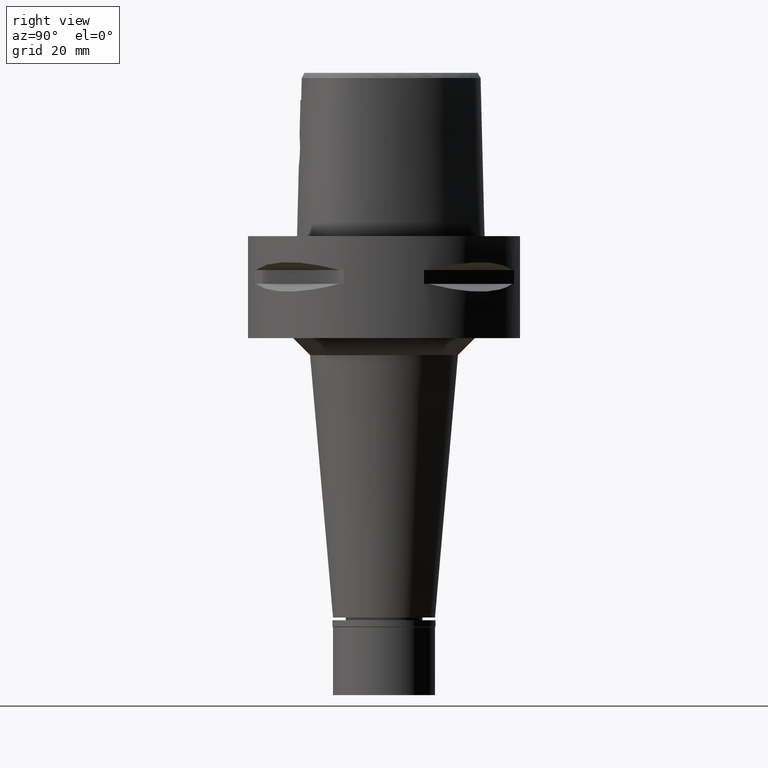
[diagram: clean part render]
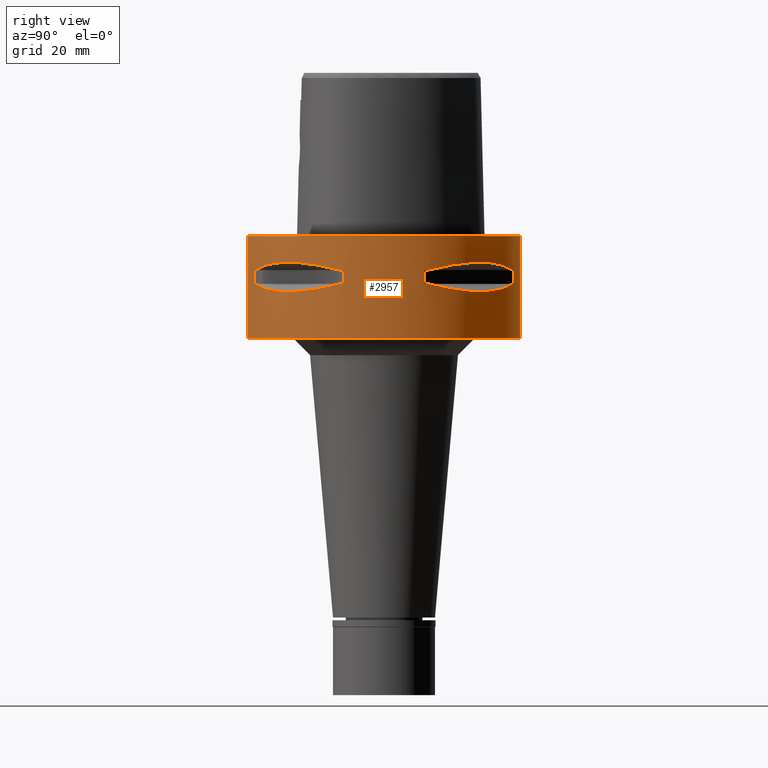
[diagram: same view with one face highlighted and labeled with its STEP entity id]
A machine part, right view. The second image highlights one B-rep face of the part: STEP entity #2957.
In plain terms, the highlighted cylindrical surface (partial cylindrical patch) has radius 40 mm, axis along (0, 0, -1).
Its self-contained STEP definition (entity closure, byte-faithful):
#23 = AXIS2_PLACEMENT_3D ( 'NONE', #3019, #1075, #1899 ) ;
#34 = CIRCLE ( 'NONE', #3195, 40.00000000000000000 ) ;
#51 = VERTEX_POINT ( 'NONE', #1360 ) ;
#60 = CARTESIAN_POINT ( 'NONE',  ( 11.76033600280999991, -38.23211342708000160, -9.950000000000001066 ) ) ;
#74 = VERTEX_POINT ( 'NONE', #4782 ) ;
#77 = CARTESIAN_POINT ( 'NONE',  ( 11.76033600280999991, 38.23211342708000160, -9.950000000000001066 ) ) ;
#80 = CARTESIAN_POINT ( 'NONE',  ( 30.77249687753092289, -25.62819065487347814, -16.26160051742767365 ) ) ;
#159 = DIRECTION ( 'NONE',  ( 0.0000000000000000000, 0.0000000000000000000, -1.000000000000000000 ) ) ;
#203 = DIRECTION ( 'NONE',  ( 0.0000000000000000000, 0.0000000000000000000, 1.000000000000000000 ) ) ;
#220 = CARTESIAN_POINT ( 'NONE',  ( 33.72697758561029246, -21.50560509406250276, -15.78472370821739901 ) ) ;
#240 = CARTESIAN_POINT ( 'NONE',  ( 33.76566745675005166, 21.44484052678287256, -15.77571175125579828 ) ) ;
#257 = CARTESIAN_POINT ( 'NONE',  ( 23.88364259926272481, 32.22570670466008380, -7.859869859733159991 ) ) ;
#289 = CARTESIAN_POINT ( 'NONE',  ( 26.20795918968520866, 30.36058330523860960, -7.669863843575448925 ) ) ;
#297 = CARTESIAN_POINT ( 'NONE',  ( 37.74622163926999718, 13.23717311056000057, -9.950000000002001244 ) ) ;
#333 = DIRECTION ( 'NONE',  ( 0.9558028356769561196, 0.2940084000702865574, 0.0000000000000000000 ) ) ;
#351 = ORIENTED_EDGE ( 'NONE', *, *, #1132, .F. ) ;
#383 = CARTESIAN_POINT ( 'NONE',  ( 20.91613153241887701, -34.09685321779939926, -15.69507322892818557 ) ) ;
#403 = CARTESIAN_POINT ( 'NONE',  ( 21.20128033779640830, -33.91944728533381692, -15.73905907260415837 ) ) ;
#420 = CARTESIAN_POINT ( 'NONE',  ( 13.23717311056000057, 37.74622163926999718, -14.05000000000000071 ) ) ;
#427 = DIRECTION ( 'NONE',  ( 0.0000000000000000000, 0.0000000000000000000, -1.000000000000000000 ) ) ;
#451 = VECTOR ( 'NONE', #713, 1000.000000000000000 ) ;
#475 = CARTESIAN_POINT ( 'NONE',  ( 33.03835700909839090, -22.55421454657001235, -15.93168855142863904 ) ) ;
#501 = CARTESIAN_POINT ( 'NONE',  ( 0.0000000000000000000, 1.303207891312999846E-14, 0.0000000000000000000 ) ) ;
#503 = DIRECTION ( 'NONE',  ( 0.2940084000702865574, -0.9558028356769561196, 0.0000000000000000000 ) ) ;
#514 = CIRCLE ( 'NONE', #4419, 39.99999999999999289 ) ;
#528 = CARTESIAN_POINT ( 'NONE',  ( 0.0000000000000000000, 1.303207891312999846E-14, -9.950000000000001066 ) ) ;
#545 = CARTESIAN_POINT ( 'NONE',  ( 0.0000000000000000000, -40.00000000000000000, 0.0000000000000000000 ) ) ;
#561 = DIRECTION ( 'NONE',  ( 0.0000000000000000000, 0.0000000000000000000, 1.000000000000000000 ) ) ;
#565 = VERTEX_POINT ( 'NONE', #4222 ) ;
#583 = CIRCLE ( 'NONE', #4665, 39.99999999999999289 ) ;
#586 = EDGE_CURVE ( 'NONE', #2168, #4932, #583, .T. ) ;
#588 = ORIENTED_EDGE ( 'NONE', *, *, #3388, .T. ) ;
#608 = DIRECTION ( 'NONE',  ( 0.9436555409818374596, 0.3309293277639132058, 0.0000000000000000000 ) ) ;
#610 = CARTESIAN_POINT ( 'NONE',  ( 11.76033600280999991, 38.23211342708000160, -14.05000000000000071 ) ) ;
#637 = CARTESIAN_POINT ( 'NONE',  ( 33.91944728533341191, 21.20128033779756294, -15.73905907260447101 ) ) ;
#663 = ORIENTED_EDGE ( 'NONE', *, *, #4082, .T. ) ;
#674 = CARTESIAN_POINT ( 'NONE',  ( 35.41596287858687475, 18.83173199168492218, -8.619939612229346793 ) ) ;
#685 = ORIENTED_EDGE ( 'NONE', *, *, #1292, .T. ) ;
#687 = CARTESIAN_POINT ( 'NONE',  ( 23.60097336453497618, 32.30995221951452834, -16.06165603927751917 ) ) ;
#692 = AXIS2_PLACEMENT_3D ( 'NONE', #4394, #4813, #1185 ) ;
#704 = CARTESIAN_POINT ( 'NONE',  ( 0.0000000000000000000, 1.303207891312999846E-14, -14.05000000000000071 ) ) ;
#713 = DIRECTION ( 'NONE',  ( 0.0000000000000000000, 0.0000000000000000000, 1.000000000000000000 ) ) ;
#715 = CARTESIAN_POINT ( 'NONE',  ( 36.35358138589326416, 16.81132763100200123, -14.94059947015123058 ) ) ;
#719 = ORIENTED_EDGE ( 'NONE', *, *, #2723, .T. ) ;
#752 = VERTEX_POINT ( 'NONE', #3722 ) ;
#757 = EDGE_CURVE ( 'NONE', #888, #4245, #974, .T. ) ;
#766 = EDGE_LOOP ( 'NONE', ( #3926, #2994, #719, #2580 ) ) ;
#807 = CARTESIAN_POINT ( 'NONE',  ( 37.74622163926999718, 13.23717311056000057, -14.05000000000000071 ) ) ;
#817 = CARTESIAN_POINT ( 'NONE',  ( 0.0000000000000000000, 40.00000000000000000, 0.0000000000000000000 ) ) ;
#866 = CARTESIAN_POINT ( 'NONE',  ( 21.46607685731536819, -33.75216276490051825, -15.77886817953059051 ) ) ;
#888 = VERTEX_POINT ( 'NONE', #60 ) ;
#901 = ORIENTED_EDGE ( 'NONE', *, *, #3313, .T. ) ;
#907 = CARTESIAN_POINT ( 'NONE',  ( 26.20795918965211158, -30.36058330527167115, -7.669882118573492669 ) ) ;
#910 = CARTESIAN_POINT ( 'NONE',  ( 0.0000000000000000000, 1.303207891312999846E-14, -9.950000000000001066 ) ) ;
#913 = ORIENTED_EDGE ( 'NONE', *, *, #4505, .F. ) ;
#934 = CARTESIAN_POINT ( 'NONE',  ( 30.36058330527161075, -26.20795918965218618, -7.669863843587146235 ) ) ;
#974 = LINE ( 'NONE', #2919, #1590 ) ;
#986 = CARTESIAN_POINT ( 'NONE',  ( 36.74070924257181758, -16.10442380448733957, -9.189948522868267133 ) ) ;
#993 = B_SPLINE_CURVE_WITH_KNOTS ( 'NONE', 3,
 ( #1470, #2995, #715, #5082, #4642, #1079, #637, #4589, #3386, #240, #2660, #2300, #4241, #2218, #3799, #687, #1823, #3413, #2270, #4998, #3856, #1441, #1875, #3882, #2633, #3464 ),
 .UNSPECIFIED., .F., .F.,
 ( 4, 1, 1, 1, 1, 1, 1, 2, 2, 2, 1, 1, 1, 1, 1, 1, 2, 2, 4 ),
 ( 0.0000000000000000000, 0.1249999999999938660, 0.1874999999999906741, 0.2187499999999889255, 0.2343749999999879541, 0.2421874999999872879, 0.2460937499999869549, 0.2480468749999869271, 0.2499999999999869271, 0.4999999999999968914, 0.6250000000000018874, 0.6875000000000044409, 0.7187500000000057732, 0.7343750000000064393, 0.7421875000000067724, 0.7460937500000065503, 0.7480468750000062172, 0.7500000000000058842, 1.000000000000000000 ),
 .UNSPECIFIED. ) ;
#1041 = EDGE_CURVE ( 'NONE', #4839, #74, #2423, .T. ) ;
#1075 = DIRECTION ( 'NONE',  ( 0.0000000000000000000, 0.0000000000000000000, 1.000000000000000000 ) ) ;
#1079 = CARTESIAN_POINT ( 'NONE',  ( 34.09685321779860345, 20.91613153242115075, -15.69507322892878953 ) ) ;
#1095 = CARTESIAN_POINT ( 'NONE',  ( 0.0000000000000000000, 1.303207891312999846E-14, -14.05000000000000071 ) ) ;
#1118 = CIRCLE ( 'NONE', #3681, 39.99999999999997868 ) ;
#1129 = B_SPLINE_CURVE_WITH_KNOTS ( 'NONE', 3,
 ( #4206, #2597, #674, #5067, #4986, #289, #257, #4230, #1864, #4283 ),
 .UNSPECIFIED., .F., .F.,
 ( 4, 2, 2, 2, 4 ),
 ( 0.0000000000000000000, 0.2499999999999997780, 0.4999999999999995559, 0.7499999999999997780, 1.000000000000000000 ),
 .UNSPECIFIED. ) ;
#1132 = EDGE_CURVE ( 'NONE', #2912, #4932, #993, .T. ) ;
#1166 = CARTESIAN_POINT ( 'NONE',  ( 14.69039122917563844, -37.23659447745037454, -14.43521939500837981 ) ) ;
#1185 = DIRECTION ( 'NONE',  ( 0.0000000000000000000, -1.000000000000000000, 0.0000000000000000000 ) ) ;
#1211 = FACE_BOUND ( 'NONE', #5051, .T. ) ;
#1218 = CARTESIAN_POINT ( 'NONE',  ( 21.40429668490248005, -33.79139713908606524, -15.76966389594713647 ) ) ;
#1233 = CARTESIAN_POINT ( 'NONE',  ( 13.23717311056000057, -37.74622163926999718, -14.05000000000000071 ) ) ;
#1251 = EDGE_CURVE ( 'NONE', #3772, #1792, #2937, .T. ) ;
#1262 = CARTESIAN_POINT ( 'NONE',  ( 33.71529052282339478, -21.52391145898932834, -15.78742602700008568 ) ) ;
#1290 = EDGE_LOOP ( 'NONE', ( #2442, #3830, #1632, #351, #1418, #913, #663, #901 ) ) ;
#1292 = EDGE_CURVE ( 'NONE', #1886, #752, #2006, .T. ) ;
#1302 = VERTEX_POINT ( 'NONE', #77 ) ;
#1360 = CARTESIAN_POINT ( 'NONE',  ( 38.23211342708000160, 11.76033600280999991, -14.05000000000000071 ) ) ;
#1363 = CIRCLE ( 'NONE', #4259, 39.99999999999997868 ) ;
#1376 = CARTESIAN_POINT ( 'NONE',  ( 13.23717311056000057, 37.74622163926999718, -9.950000000002001244 ) ) ;
#1398 = CARTESIAN_POINT ( 'NONE',  ( 0.0000000000000000000, 1.303207891312999846E-14, -9.950000000000001066 ) ) ;
#1418 = ORIENTED_EDGE ( 'NONE', *, *, #4427, .T. ) ;
#1441 = CARTESIAN_POINT ( 'NONE',  ( 21.52391145898924663, 33.71529052282357952, -15.78742602700012831 ) ) ;
#1459 = DIRECTION ( 'NONE',  ( 0.0000000000000000000, 0.0000000000000000000, -1.000000000000000000 ) ) ;
#1470 = CARTESIAN_POINT ( 'NONE',  ( 37.74622163926999718, 13.23717311056000057, -14.05000000000000071 ) ) ;
#1481 = LINE ( 'NONE', #4180, #2930 ) ;
#1500 = CARTESIAN_POINT ( 'NONE',  ( 0.0000000000000000000, 1.303207891312999846E-14, -14.05000000000000071 ) ) ;
#1556 = CARTESIAN_POINT ( 'NONE',  ( 19.18269457492549179, -35.11589783530871500, -15.40342377740917001 ) ) ;
#1590 = VECTOR ( 'NONE', #2557, 1000.000000000000000 ) ;
#1595 = CARTESIAN_POINT ( 'NONE',  ( 18.83173199174709467, -35.41596287855377767, -8.619939612211810598 ) ) ;
#1632 = ORIENTED_EDGE ( 'NONE', *, *, #586, .T. ) ;
#1690 = CIRCLE ( 'NONE', #2935, 39.99999999999997868 ) ;
#1719 = CARTESIAN_POINT ( 'NONE',  ( 38.23211342708000160, 11.76033600280999991, -9.950000000000001066 ) ) ;
#1741 = CARTESIAN_POINT ( 'NONE',  ( 0.0000000000000000000, 1.303207891312999846E-14, -14.05000000000000071 ) ) ;
#1792 = VERTEX_POINT ( 'NONE', #4085 ) ;
#1823 = CARTESIAN_POINT ( 'NONE',  ( 22.55421454656803704, 33.03835700910301654, -15.93168855142971374 ) ) ;
#1857 = DIRECTION ( 'NONE',  ( 0.0000000000000000000, 0.0000000000000000000, -1.000000000000000000 ) ) ;
#1864 = CARTESIAN_POINT ( 'NONE',  ( 16.10442380453151401, 36.74070924255632775, -9.189948522856571600 ) ) ;
#1875 = CARTESIAN_POINT ( 'NONE',  ( 21.50560509406274434, 33.72697758561020720, -15.78472370821746118 ) ) ;
#1886 = VERTEX_POINT ( 'NONE', #3444 ) ;
#1899 = DIRECTION ( 'NONE',  ( 0.0000000000000000000, -1.000000000000000000, 0.0000000000000000000 ) ) ;
#1902 = ORIENTED_EDGE ( 'NONE', *, *, #757, .F. ) ;
#1905 = LINE ( 'NONE', #2690, #4004 ) ;
#1934 = EDGE_CURVE ( 'NONE', #4323, #2877, #1905, .T. ) ;
#1945 = CIRCLE ( 'NONE', #2851, 39.99999999999999289 ) ;
#1980 = CARTESIAN_POINT ( 'NONE',  ( 13.23717311056000057, -37.74622163926999718, -9.950000000002001244 ) ) ;
#2006 = CIRCLE ( 'NONE', #3661, 39.99999999999997868 ) ;
#2028 = VERTEX_POINT ( 'NONE', #3847 ) ;
#2058 = CARTESIAN_POINT ( 'NONE',  ( 32.30995221950663421, -23.60097336453835837, -16.06165603927566821 ) ) ;
#2109 = ORIENTED_EDGE ( 'NONE', *, *, #5038, .T. ) ;
#2143 = DIRECTION ( 'NONE',  ( 0.3309293277639132058, 0.9436555409818374596, 0.0000000000000000000 ) ) ;
#2162 = EDGE_CURVE ( 'NONE', #888, #565, #514, .T. ) ;
#2168 = VERTEX_POINT ( 'NONE', #610 ) ;
#2183 = CARTESIAN_POINT ( 'NONE',  ( 23.88355431037091137, -32.22577213857957901, -7.859897272571246596 ) ) ;
#2218 = CARTESIAN_POINT ( 'NONE',  ( 27.25214773984120598, 29.31642813391417590, -16.33014064577303515 ) ) ;
#2230 = CARTESIAN_POINT ( 'NONE',  ( 38.23211342708000160, -11.76033600280999991, -14.05000000000000071 ) ) ;
#2240 = CARTESIAN_POINT ( 'NONE',  ( 36.72682052669194519, -16.14402792113480345, -14.82054974553614635 ) ) ;
#2257 = DIRECTION ( 'NONE',  ( 0.9558028356769561196, -0.2940084000702865574, 0.0000000000000000000 ) ) ;
#2270 = CARTESIAN_POINT ( 'NONE',  ( 21.75464223249287699, 33.56701934068274795, -15.82109001420633732 ) ) ;
#2300 = CARTESIAN_POINT ( 'NONE',  ( 32.16767032371209467, 23.95303639237203797, -16.14729882780224202 ) ) ;
#2356 = CARTESIAN_POINT ( 'NONE',  ( 13.23717311056000057, -37.74622163926999718, -14.05000000000000071 ) ) ;
#2423 = B_SPLINE_CURVE_WITH_KNOTS ( 'NONE', 3,
 ( #2356, #1166, #3944, #1556, #3139, #383, #403, #4779, #1218, #4380, #866, #4038, #3640, #4430, #80, #2058, #475, #3231, #2455, #2838, #4819, #1262, #220, #3826, #2240, #3077 ),
 .UNSPECIFIED., .F., .F.,
 ( 4, 1, 1, 1, 1, 1, 1, 2, 2, 2, 1, 1, 1, 1, 1, 1, 2, 2, 4 ),
 ( 0.0000000000000000000, 0.1250000000000018319, 0.1875000000000027478, 0.2187500000000032196, 0.2343750000000035805, 0.2421875000000038025, 0.2460937500000040523, 0.2480468750000043576, 0.2500000000000046629, 0.5000000000000000000, 0.6249999999999975575, 0.6874999999999964473, 0.7187499999999961142, 0.7343749999999960032, 0.7421874999999960032, 0.7460937499999957812, 0.7480468749999958922, 0.7499999999999958922, 1.000000000000000000 ),
 .UNSPECIFIED. ) ;
#2442 = ORIENTED_EDGE ( 'NONE', *, *, #3939, .T. ) ;
#2455 = CARTESIAN_POINT ( 'NONE',  ( 33.56701934068144766, -21.75464223249341345, -15.82109001420603533 ) ) ;
#2482 = DIRECTION ( 'NONE',  ( 0.0000000000000000000, 0.0000000000000000000, 1.000000000000000000 ) ) ;
#2502 = DIRECTION ( 'NONE',  ( 0.9436555409818374596, -0.3309293277639132058, 0.0000000000000000000 ) ) ;
#2547 = DIRECTION ( 'NONE',  ( 0.0000000000000000000, 0.0000000000000000000, 1.000000000000000000 ) ) ;
#2557 = DIRECTION ( 'NONE',  ( 0.0000000000000000000, 0.0000000000000000000, -1.000000000000000000 ) ) ;
#2580 = ORIENTED_EDGE ( 'NONE', *, *, #1934, .F. ) ;
#2597 = CARTESIAN_POINT ( 'NONE',  ( 36.74073341983645236, 16.10435486224558943, -9.189966798093662348 ) ) ;
#2633 = CARTESIAN_POINT ( 'NONE',  ( 16.14402792110260521, 36.72682052670324993, -14.82054974552761095 ) ) ;
#2660 = CARTESIAN_POINT ( 'NONE',  ( 33.75216276490046852, 21.46607685731544990, -15.77886817953061005 ) ) ;
#2676 = DIRECTION ( 'NONE',  ( 0.0000000000000000000, 0.0000000000000000000, 1.000000000000000000 ) ) ;
#2690 = CARTESIAN_POINT ( 'NONE',  ( 0.0000000000000000000, 40.00000000000000000, 0.0000000000000000000 ) ) ;
#2710 = VERTEX_POINT ( 'NONE', #297 ) ;
#2723 = EDGE_CURVE ( 'NONE', #1792, #2877, #2849, .T. ) ;
#2838 = CARTESIAN_POINT ( 'NONE',  ( 33.65365962422774260, -21.62017158009728135, -15.80156334789082528 ) ) ;
#2849 = CIRCLE ( 'NONE', #23, 40.00000000000000000 ) ;
#2851 = AXIS2_PLACEMENT_3D ( 'NONE', #704, #1459, #2257 ) ;
#2877 = VERTEX_POINT ( 'NONE', #3906 ) ;
#2885 = CARTESIAN_POINT ( 'NONE',  ( 37.74622163926999718, -13.23717311056000057, -9.950000000002001244 ) ) ;
#2912 = VERTEX_POINT ( 'NONE', #807 ) ;
#2919 = CARTESIAN_POINT ( 'NONE',  ( 11.76033600280999991, -38.23211342708000160, -9.950000000000001066 ) ) ;
#2930 = VECTOR ( 'NONE', #2676, 1000.000000000000000 ) ;
#2935 = AXIS2_PLACEMENT_3D ( 'NONE', #1741, #159, #608 ) ;
#2937 = LINE ( 'NONE', #545, #3748 ) ;
#2944 = DIRECTION ( 'NONE',  ( 0.0000000000000000000, 0.0000000000000000000, -1.000000000000000000 ) ) ;
#2957 = ADVANCED_FACE ( 'NONE', ( #4771, #1211, #4721 ), #3983, .T. ) ;
#2960 = DIRECTION ( 'NONE',  ( 0.0000000000000000000, 0.0000000000000000000, -1.000000000000000000 ) ) ;
#2984 = DIRECTION ( 'NONE',  ( 0.0000000000000000000, 0.0000000000000000000, -1.000000000000000000 ) ) ;
#2994 = ORIENTED_EDGE ( 'NONE', *, *, #1251, .T. ) ;
#2995 = CARTESIAN_POINT ( 'NONE',  ( 37.23659447744844897, 14.69039122918117357, -14.43521939500984885 ) ) ;
#3019 = CARTESIAN_POINT ( 'NONE',  ( 0.0000000000000000000, 1.303207891312999846E-14, -30.00000000000000000 ) ) ;
#3054 = DIRECTION ( 'NONE',  ( 0.2940084000702865574, 0.9558028356769561196, 0.0000000000000000000 ) ) ;
#3077 = CARTESIAN_POINT ( 'NONE',  ( 37.74622163926999718, -13.23717311056000057, -14.05000000000000071 ) ) ;
#3139 = CARTESIAN_POINT ( 'NONE',  ( 20.34261333234551472, -34.44518065740425783, -15.60313948593864275 ) ) ;
#3195 = AXIS2_PLACEMENT_3D ( 'NONE', #501, #427, #4432 ) ;
#3231 = CARTESIAN_POINT ( 'NONE',  ( 33.39247868354526361, -22.02254759438564591, -15.85920599531236164 ) ) ;
#3284 = LINE ( 'NONE', #1719, #4697 ) ;
#3300 = VERTEX_POINT ( 'NONE', #2230 ) ;
#3313 = EDGE_CURVE ( 'NONE', #2710, #3785, #1129, .T. ) ;
#3318 = CARTESIAN_POINT ( 'NONE',  ( 0.0000000000000000000, -40.00000000000000000, 0.0000000000000000000 ) ) ;
#3351 = EDGE_CURVE ( 'NONE', #3300, #752, #1481, .T. ) ;
#3386 = CARTESIAN_POINT ( 'NONE',  ( 33.79139713908593023, 21.40429668490282467, -15.76966389594722528 ) ) ;
#3388 = EDGE_CURVE ( 'NONE', #3300, #74, #1945, .T. ) ;
#3413 = CARTESIAN_POINT ( 'NONE',  ( 22.02254759438460141, 33.39247868354773630, -15.85920599531294783 ) ) ;
#3419 = EDGE_CURVE ( 'NONE', #4839, #4245, #1118, .T. ) ;
#3444 = CARTESIAN_POINT ( 'NONE',  ( 37.74622163926999718, -13.23717311056000057, -9.950000000002001244 ) ) ;
#3464 = CARTESIAN_POINT ( 'NONE',  ( 13.23717311056000057, 37.74622163926999718, -14.05000000000000071 ) ) ;
#3518 = LINE ( 'NONE', #3854, #451 ) ;
#3565 = CARTESIAN_POINT ( 'NONE',  ( 16.10435486228985980, -36.74073341982089147, -9.189966798081965038 ) ) ;
#3640 = CARTESIAN_POINT ( 'NONE',  ( 26.21995747456629644, -30.34851826269509800, -16.33009976522055240 ) ) ;
#3661 = AXIS2_PLACEMENT_3D ( 'NONE', #910, #2547, #2502 ) ;
#3681 = AXIS2_PLACEMENT_3D ( 'NONE', #1095, #2984, #4578 ) ;
#3705 = CARTESIAN_POINT ( 'NONE',  ( 0.0000000000000000000, 1.303207891312999846E-14, -9.950000000000001066 ) ) ;
#3722 = CARTESIAN_POINT ( 'NONE',  ( 38.23211342708000160, -11.76033600280999991, -9.950000000000001066 ) ) ;
#3748 = VECTOR ( 'NONE', #2960, 1000.000000000000000 ) ;
#3772 = VERTEX_POINT ( 'NONE', #3318 ) ;
#3785 = VERTEX_POINT ( 'NONE', #1376 ) ;
#3799 = CARTESIAN_POINT ( 'NONE',  ( 25.62819065486898396, 30.77249687754148866, -16.26160051743016055 ) ) ;
#3826 = CARTESIAN_POINT ( 'NONE',  ( 35.39137327285502010, -18.89342208874845142, -15.39779115589221625 ) ) ;
#3830 = ORIENTED_EDGE ( 'NONE', *, *, #4634, .F. ) ;
#3847 = CARTESIAN_POINT ( 'NONE',  ( 38.23211342708000160, 11.76033600280999991, -9.950000000000001066 ) ) ;
#3854 = CARTESIAN_POINT ( 'NONE',  ( 11.76033600280999991, 38.23211342708000160, -14.05000000000000071 ) ) ;
#3856 = CARTESIAN_POINT ( 'NONE',  ( 21.56243030661663695, 33.69065616467183588, -15.79309434609252705 ) ) ;
#3877 = ORIENTED_EDGE ( 'NONE', *, *, #3351, .F. ) ;
#3882 = CARTESIAN_POINT ( 'NONE',  ( 18.89342208871625317, 35.39137327286631063, -15.39779115588368619 ) ) ;
#3898 = B_SPLINE_CURVE_WITH_KNOTS ( 'NONE', 3,
 ( #1980, #3565, #1595, #2183, #907, #934, #4942, #4101, #986, #2885 ),
 .UNSPECIFIED., .F., .F.,
 ( 4, 2, 2, 2, 4 ),
 ( 0.0000000000000000000, 0.2500000000000000000, 0.5000000000000000000, 0.7500000000000000000, 1.000000000000000000 ),
 .UNSPECIFIED. ) ;
#3906 = CARTESIAN_POINT ( 'NONE',  ( 0.0000000000000000000, 40.00000000000000000, -30.00000000000000000 ) ) ;
#3926 = ORIENTED_EDGE ( 'NONE', *, *, #4278, .T. ) ;
#3939 = EDGE_CURVE ( 'NONE', #3785, #1302, #1363, .T. ) ;
#3944 = CARTESIAN_POINT ( 'NONE',  ( 16.81132763099230587, -36.35358138589664634, -14.94059947014864775 ) ) ;
#3983 = CYLINDRICAL_SURFACE ( 'NONE', #692, 40.00000000000000000 ) ;
#4004 = VECTOR ( 'NONE', #5053, 1000.000000000000000 ) ;
#4038 = CARTESIAN_POINT ( 'NONE',  ( 23.95303639238279914, -32.16767032370825063, -16.14729882780506287 ) ) ;
#4082 = EDGE_CURVE ( 'NONE', #2028, #2710, #4604, .T. ) ;
#4085 = CARTESIAN_POINT ( 'NONE',  ( 0.0000000000000000000, -40.00000000000000000, -30.00000000000000000 ) ) ;
#4101 = CARTESIAN_POINT ( 'NONE',  ( 35.41591128513823605, -18.83182902076454113, -8.619912199391260188 ) ) ;
#4180 = CARTESIAN_POINT ( 'NONE',  ( 38.23211342708000160, -11.76033600280999991, -14.05000000000000071 ) ) ;
#4206 = CARTESIAN_POINT ( 'NONE',  ( 37.74622163926999718, 13.23717311056000057, -9.950000000002001244 ) ) ;
#4210 = ORIENTED_EDGE ( 'NONE', *, *, #1041, .F. ) ;
#4222 = CARTESIAN_POINT ( 'NONE',  ( 13.23717311056000057, -37.74622163926999718, -9.950000000002001244 ) ) ;
#4230 = CARTESIAN_POINT ( 'NONE',  ( 18.83182902082666743, 35.41591128510520292, -8.619912199373711559 ) ) ;
#4241 = CARTESIAN_POINT ( 'NONE',  ( 30.34851826270024944, 26.21995747455423853, -16.33009976521772799 ) ) ;
#4245 = VERTEX_POINT ( 'NONE', #4821 ) ;
#4259 = AXIS2_PLACEMENT_3D ( 'NONE', #3705, #561, #2143 ) ;
#4264 = AXIS2_PLACEMENT_3D ( 'NONE', #1398, #203, #333 ) ;
#4278 = EDGE_CURVE ( 'NONE', #4323, #3772, #34, .T. ) ;
#4283 = CARTESIAN_POINT ( 'NONE',  ( 13.23717311056000057, 37.74622163926999718, -9.950000000002001244 ) ) ;
#4323 = VERTEX_POINT ( 'NONE', #817 ) ;
#4338 = ORIENTED_EDGE ( 'NONE', *, *, #3419, .T. ) ;
#4380 = CARTESIAN_POINT ( 'NONE',  ( 21.44484052678270913, -33.76566745675011560, -15.77571175125575031 ) ) ;
#4394 = CARTESIAN_POINT ( 'NONE',  ( 0.0000000000000000000, 1.303207891312999846E-14, 6.415000000000000036 ) ) ;
#4419 = AXIS2_PLACEMENT_3D ( 'NONE', #528, #2482, #503 ) ;
#4427 = EDGE_CURVE ( 'NONE', #2912, #51, #1690, .T. ) ;
#4430 = CARTESIAN_POINT ( 'NONE',  ( 29.31642813390815050, -27.25214773984377459, -16.33014064577162472 ) ) ;
#4432 = DIRECTION ( 'NONE',  ( 0.0000000000000000000, 1.000000000000000000, 0.0000000000000000000 ) ) ;
#4505 = EDGE_CURVE ( 'NONE', #2028, #51, #3284, .T. ) ;
#4578 = DIRECTION ( 'NONE',  ( 0.3309293277639132058, -0.9436555409818374596, 0.0000000000000000000 ) ) ;
#4589 = CARTESIAN_POINT ( 'NONE',  ( 33.82993376593505275, 21.34345216682098112, -15.76055673748761166 ) ) ;
#4604 = CIRCLE ( 'NONE', #4264, 39.99999999999999289 ) ;
#4634 = EDGE_CURVE ( 'NONE', #2168, #1302, #3518, .T. ) ;
#4642 = CARTESIAN_POINT ( 'NONE',  ( 34.44518065740276569, 20.34261333234974245, -15.60313948593977074 ) ) ;
#4665 = AXIS2_PLACEMENT_3D ( 'NONE', #1500, #1857, #3054 ) ;
#4697 = VECTOR ( 'NONE', #2944, 1000.000000000000000 ) ;
#4721 = FACE_BOUND ( 'NONE', #1290, .T. ) ;
#4771 = FACE_OUTER_BOUND ( 'NONE', #766, .T. ) ;
#4779 = CARTESIAN_POINT ( 'NONE',  ( 21.34345216682037716, -33.82993376593525170, -15.76055673748744468 ) ) ;
#4782 = CARTESIAN_POINT ( 'NONE',  ( 37.74622163926999718, -13.23717311056000057, -14.05000000000000071 ) ) ;
#4813 = DIRECTION ( 'NONE',  ( 0.0000000000000000000, 0.0000000000000000000, -1.000000000000000000 ) ) ;
#4819 = CARTESIAN_POINT ( 'NONE',  ( 33.69065616467145929, -21.56243030661679327, -15.79309434609244001 ) ) ;
#4821 = CARTESIAN_POINT ( 'NONE',  ( 11.76033600280999991, -38.23211342708000160, -14.05000000000000071 ) ) ;
#4839 = VERTEX_POINT ( 'NONE', #1233 ) ;
#4932 = VERTEX_POINT ( 'NONE', #420 ) ;
#4942 = CARTESIAN_POINT ( 'NONE',  ( 32.22570670470193477, -23.88364259920623667, -7.859869859750701515 ) ) ;
#4972 = ORIENTED_EDGE ( 'NONE', *, *, #2162, .T. ) ;
#4986 = CARTESIAN_POINT ( 'NONE',  ( 30.36058330523851367, 26.20795918968530813, -7.669882118585187314 ) ) ;
#4998 = CARTESIAN_POINT ( 'NONE',  ( 21.62017158009700069, 33.65365962422837498, -15.80156334789098160 ) ) ;
#5038 = EDGE_CURVE ( 'NONE', #565, #1886, #3898, .T. ) ;
#5051 = EDGE_LOOP ( 'NONE', ( #685, #3877, #588, #4210, #4338, #1902, #4972, #2109 ) ) ;
#5053 = DIRECTION ( 'NONE',  ( 0.0000000000000000000, 0.0000000000000000000, -1.000000000000000000 ) ) ;
#5067 = CARTESIAN_POINT ( 'NONE',  ( 32.22577213862145840, 23.88355431031446230, -7.859897272588792561 ) ) ;
#5082 = CARTESIAN_POINT ( 'NONE',  ( 35.11589783530617126, 19.18269457493275354, -15.40342377741110091 ) ) ;